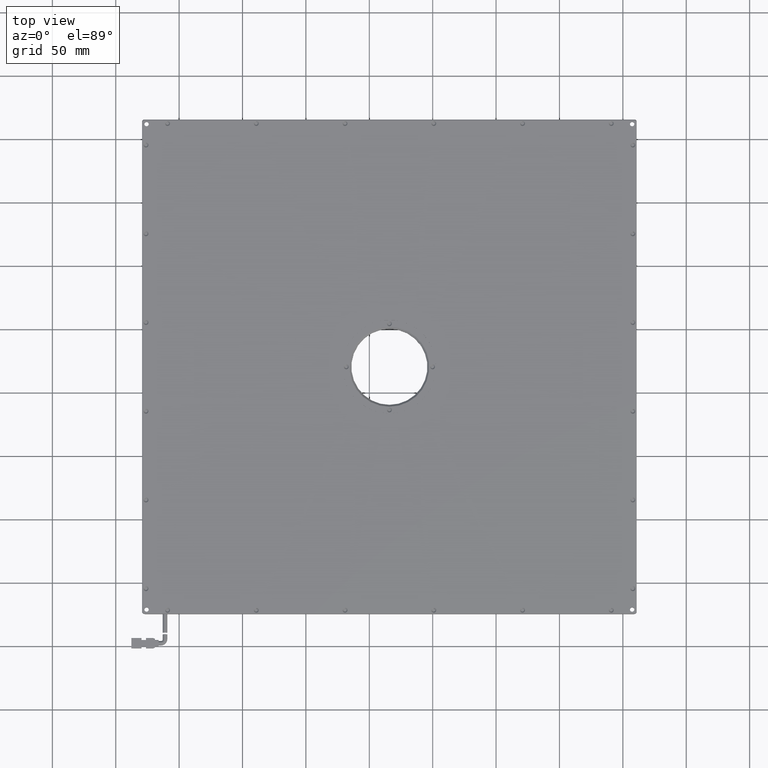
[diagram: clean part render]
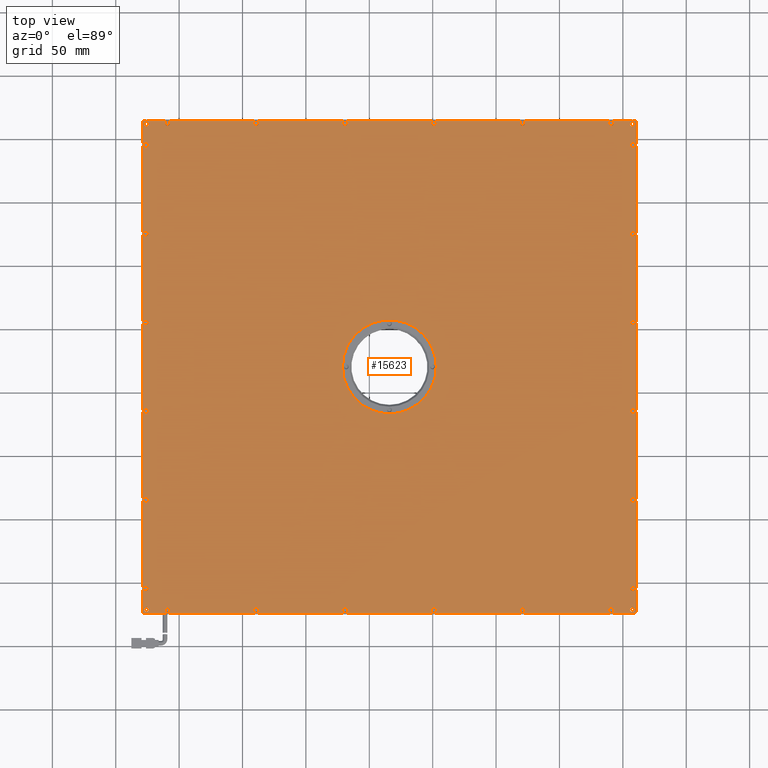
[diagram: same view with one face highlighted and labeled with its STEP entity id]
A machine part, top view. The second image highlights one B-rep face of the part: STEP entity #15623.
In plain terms, the highlighted planar face has unit normal (0, -0, 1).
Its self-contained STEP definition (entity closure, byte-faithful):
#19 = DIRECTION ( 'NONE',  ( 1.000000000000000000, 0.0000000000000000000, 0.0000000000000000000 ) ) ;
#29 = AXIS2_PLACEMENT_3D ( 'NONE', #14003, #8614, #10539 ) ;
#53 = EDGE_CURVE ( 'NONE', #6862, #17499, #2041, .T. ) ;
#58 = ORIENTED_EDGE ( 'NONE', *, *, #20831, .T. ) ;
#73 = FACE_BOUND ( 'NONE', #9684, .T. ) ;
#82 = EDGE_LOOP ( 'NONE', ( #20084, #21516 ) ) ;
#92 = CIRCLE ( 'NONE', #21114, 1.749999999999973800 ) ;
#101 = CARTESIAN_POINT ( 'NONE',  ( -67.14840179855441700, 212.4229729729719100, 8.249999999962254200 ) ) ;
#123 = EDGE_CURVE ( 'NONE', #21405, #4573, #3881, .T. ) ;
#125 = EDGE_CURVE ( 'NONE', #18833, #15910, #3348, .T. ) ;
#160 = DIRECTION ( 'NONE',  ( 1.000000000000000000, 0.0000000000000000000, 0.0000000000000000000 ) ) ;
#212 = CARTESIAN_POINT ( 'NONE',  ( -226.1484017985400200, -84.57702702702613400, 8.250000000019097600 ) ) ;
#261 = ORIENTED_EDGE ( 'NONE', *, *, #545, .T. ) ;
#283 = CARTESIAN_POINT ( 'NONE',  ( -229.1484017985390300, 214.9229729729718800, 8.249999999999998200 ) ) ;
#288 = EDGE_CURVE ( 'NONE', #12658, #2480, #4926, .T. ) ;
#368 = DIRECTION ( 'NONE',  ( 1.000000000000000000, 0.0000000000000000000, 0.0000000000000000000 ) ) ;
#463 = VERTEX_POINT ( 'NONE', #3064 ) ;
#476 = VERTEX_POINT ( 'NONE', #14835 ) ;
#477 = AXIS2_PLACEMENT_3D ( 'NONE', #6607, #8167, #18540 ) ;
#488 = EDGE_LOOP ( 'NONE', ( #7412, #10250 ) ) ;
#490 = VERTEX_POINT ( 'NONE', #16619 ) ;
#502 = VERTEX_POINT ( 'NONE', #8056 ) ;
#506 = CIRCLE ( 'NONE', #20376, 2.000000000027784900 ) ;
#545 = EDGE_CURVE ( 'NONE', #15107, #8422, #4348, .T. ) ;
#566 = EDGE_CURVE ( 'NONE', #476, #9454, #92, .T. ) ;
#587 = DIRECTION ( 'NONE',  ( 1.000000000000000000, 0.0000000000000000000, 0.0000000000000000000 ) ) ;
#601 = CIRCLE ( 'NONE', #17073, 1.749999999999973800 ) ;
#604 = FACE_BOUND ( 'NONE', #10722, .T. ) ;
#618 = VECTOR ( 'NONE', #16949, 1000.000000000000000 ) ;
#753 = EDGE_CURVE ( 'NONE', #12091, #3181, #10726, .T. ) ;
#777 = EDGE_LOOP ( 'NONE', ( #19841, #14763 ) ) ;
#940 = CARTESIAN_POINT ( 'NONE',  ( 157.8515982014611400, 55.42297297297133700, 8.250000000019097600 ) ) ;
#941 = AXIS2_PLACEMENT_3D ( 'NONE', #2486, #18123, #7896 ) ;
#971 = AXIS2_PLACEMENT_3D ( 'NONE', #2110, #7225, #587 ) ;
#972 = EDGE_CURVE ( 'NONE', #19331, #14021, #10702, .T. ) ;
#1065 = CARTESIAN_POINT ( 'NONE',  ( -34.14840179853894900, 20.42297297297193700, 8.249999999999998200 ) ) ;
#1132 = DIRECTION ( 'NONE',  ( 1.000000000000000000, 0.0000000000000000000, 0.0000000000000000000 ) ) ;
#1156 = DIRECTION ( 'NONE',  ( 1.000000000000000000, 0.0000000000000000000, 0.0000000000000000000 ) ) ;
#1157 = CIRCLE ( 'NONE', #2996, 1.999999999998169900 ) ;
#1166 = EDGE_CURVE ( 'NONE', #16191, #13073, #15524, .T. ) ;
#1203 = DIRECTION ( 'NONE',  ( 0.0000000000000000000, -0.0000000000000000000, 1.000000000000000000 ) ) ;
#1219 = DIRECTION ( 'NONE',  ( 1.000000000000000000, 0.0000000000000000000, 0.0000000000000000000 ) ) ;
#1266 = DIRECTION ( 'NONE',  ( 1.000000000000000000, 0.0000000000000000000, 0.0000000000000000000 ) ) ;
#1276 = CARTESIAN_POINT ( 'NONE',  ( 155.8515982015007900, -14.57702702702867700, 8.250000000019097600 ) ) ;
#1289 = ORIENTED_EDGE ( 'NONE', *, *, #10288, .T. ) ;
#1291 = CARTESIAN_POINT ( 'NONE',  ( -228.6484017985390300, -173.3699202458416000, 8.249999999999998200 ) ) ;
#1315 = VERTEX_POINT ( 'NONE', #1276 ) ;
#1340 = CARTESIAN_POINT ( 'NONE',  ( -207.1484017985407600, 212.4229729729718800, 8.250000000019097600 ) ) ;
#1379 = EDGE_CURVE ( 'NONE', #5773, #1315, #20544, .T. ) ;
#1462 = CARTESIAN_POINT ( 'NONE',  ( 157.8515982014606600, -84.57702702702867700, 8.250000000019097600 ) ) ;
#1468 = VERTEX_POINT ( 'NONE', #1502 ) ;
#1469 = CIRCLE ( 'NONE', #9238, 1.999999999959895000 ) ;
#1502 = CARTESIAN_POINT ( 'NONE',  ( 138.8515982014403400, -171.5770270270280100, 8.250000000019097600 ) ) ;
#1577 = CARTESIAN_POINT ( 'NONE',  ( -226.1484017985407600, -154.5770270270261300, 8.250000000019097600 ) ) ;
#1635 = CARTESIAN_POINT ( 'NONE',  ( -226.1484017985378300, 125.4229729729738900, 8.250000000019097600 ) ) ;
#1669 = AXIS2_PLACEMENT_3D ( 'NONE', #16491, #11407, #13220 ) ;
#1673 = DIRECTION ( 'NONE',  ( 1.000000000000000000, 0.0000000000000000000, 0.0000000000000000000 ) ) ;
#1683 = DIRECTION ( 'NONE',  ( 1.000000000000000000, 0.0000000000000000000, 0.0000000000000000000 ) ) ;
#1709 = VERTEX_POINT ( 'NONE', #16218 ) ;
#1765 = EDGE_CURVE ( 'NONE', #8557, #11190, #4264, .T. ) ;
#1777 = DIRECTION ( 'NONE',  ( 1.000000000000000000, 0.0000000000000000000, 0.0000000000000000000 ) ) ;
#1799 = CIRCLE ( 'NONE', #7167, 37.00000000000000000 ) ;
#1819 = CARTESIAN_POINT ( 'NONE',  ( -226.1484017985371200, 195.4229729729738900, 8.250000000019097600 ) ) ;
#1864 = CARTESIAN_POINT ( 'NONE',  ( 157.8515982014616000, 195.4229729729713400, 8.250000000019097600 ) ) ;
#1865 = CIRCLE ( 'NONE', #21846, 2.000000000027660100 ) ;
#1881 = DIRECTION ( 'NONE',  ( -0.0000000000000000000, 0.0000000000000000000, -1.000000000000000000 ) ) ;
#1913 = AXIS2_PLACEMENT_3D ( 'NONE', #15171, #3026, #2962 ) ;
#1932 = CIRCLE ( 'NONE', #7446, 2.000000000027660100 ) ;
#1938 = AXIS2_PLACEMENT_3D ( 'NONE', #1065, #14617, #6048 ) ;
#2035 = ORIENTED_EDGE ( 'NONE', *, *, #125, .T. ) ;
#2041 = LINE ( 'NONE', #18326, #14542 ) ;
#2110 = CARTESIAN_POINT ( 'NONE',  ( -226.1484017985392800, -14.57702702702612300, 8.250000000019097600 ) ) ;
#2137 = CARTESIAN_POINT ( 'NONE',  ( 159.8515982014210400, 55.42297297297133700, 8.250000000019097600 ) ) ;
#2246 = VERTEX_POINT ( 'NONE', #10348 ) ;
#2388 = CARTESIAN_POINT ( 'NONE',  ( -224.1484017985366700, 55.42297297297388100, 8.250000000019097600 ) ) ;
#2399 = VECTOR ( 'NONE', #13412, 1000.000000000000100 ) ;
#2403 = DIRECTION ( 'NONE',  ( -0.0000000000000000000, 0.0000000000000000000, -1.000000000000000000 ) ) ;
#2429 = CIRCLE ( 'NONE', #9331, 2.000000000000445900 ) ;
#2460 = DIRECTION ( 'NONE',  ( -0.0000000000000000000, 0.0000000000000000000, -1.000000000000000000 ) ) ;
#2465 = EDGE_CURVE ( 'NONE', #15978, #7935, #12492, .T. ) ;
#2480 = VERTEX_POINT ( 'NONE', #16290 ) ;
#2486 = CARTESIAN_POINT ( 'NONE',  ( -209.1484017985390600, 212.4229729729718800, 8.250000000019097600 ) ) ;
#2517 = CIRCLE ( 'NONE', #971, 2.000000000002610800 ) ;
#2551 = VERTEX_POINT ( 'NONE', #16008 ) ;
#2558 = VERTEX_POINT ( 'NONE', #2388 ) ;
#2611 = ORIENTED_EDGE ( 'NONE', *, *, #20011, .T. ) ;
#2619 = EDGE_CURVE ( 'NONE', #11498, #13073, #4463, .T. ) ;
#2638 = CIRCLE ( 'NONE', #6939, 2.000000000020818500 ) ;
#2653 = EDGE_LOOP ( 'NONE', ( #21018, #16765 ) ) ;
#2707 = CARTESIAN_POINT ( 'NONE',  ( -226.1484017985400200, -84.57702702702613400, 8.250000000019097600 ) ) ;
#2723 = DIRECTION ( 'NONE',  ( 1.000000000000000000, 0.0000000000000000000, 0.0000000000000000000 ) ) ;
#2779 = EDGE_CURVE ( 'NONE', #20738, #15132, #5787, .T. ) ;
#2790 = DIRECTION ( 'NONE',  ( -0.0000000000000000000, 0.0000000000000000000, -1.000000000000000000 ) ) ;
#2810 = AXIS2_PLACEMENT_3D ( 'NONE', #6497, #14845, #6433 ) ;
#2873 = EDGE_CURVE ( 'NONE', #490, #16749, #601, .T. ) ;
#2926 = CARTESIAN_POINT ( 'NONE',  ( 157.8515982014609200, -14.57702702702867700, 8.250000000019097600 ) ) ;
#2935 = CARTESIAN_POINT ( 'NONE',  ( 140.8515982014611400, -171.5770270270280100, 8.250000000019097600 ) ) ;
#2962 = DIRECTION ( 'NONE',  ( 1.000000000000000000, 0.0000000000000000000, 0.0000000000000000000 ) ) ;
#2992 = CIRCLE ( 'NONE', #9026, 2.000000000034613200 ) ;
#2995 = DIRECTION ( 'NONE',  ( -0.0000000000000000000, 0.0000000000000000000, -1.000000000000000000 ) ) ;
#2996 = AXIS2_PLACEMENT_3D ( 'NONE', #3607, #3305, #1683 ) ;
#3016 = FACE_BOUND ( 'NONE', #488, .T. ) ;
#3020 = EDGE_LOOP ( 'NONE', ( #16006, #14158 ) ) ;
#3026 = DIRECTION ( 'NONE',  ( -0.0000000000000000000, 0.0000000000000000000, -1.000000000000000000 ) ) ;
#3027 = AXIS2_PLACEMENT_3D ( 'NONE', #2926, #13206, #14832 ) ;
#3036 = ORIENTED_EDGE ( 'NONE', *, *, #753, .T. ) ;
#3064 = CARTESIAN_POINT ( 'NONE',  ( -224.1484017985366700, -14.57702702702612300, 8.250000000019097600 ) ) ;
#3128 = AXIS2_PLACEMENT_3D ( 'NONE', #1864, #7198, #15768 ) ;
#3138 = VERTEX_POINT ( 'NONE', #20283 ) ;
#3181 = VERTEX_POINT ( 'NONE', #15066 ) ;
#3305 = DIRECTION ( 'NONE',  ( -0.0000000000000000000, 0.0000000000000000000, -1.000000000000000000 ) ) ;
#3307 = CIRCLE ( 'NONE', #3128, 1.999999999959423100 ) ;
#3319 = CIRCLE ( 'NONE', #1669, 1.999999999998169900 ) ;
#3348 = CIRCLE ( 'NONE', #12428, 2.000000000001167500 ) ;
#3401 = VERTEX_POINT ( 'NONE', #15655 ) ;
#3460 = VERTEX_POINT ( 'NONE', #10939 ) ;
#3476 = DIRECTION ( 'NONE',  ( 1.000000000000000000, 0.0000000000000000000, 0.0000000000000000000 ) ) ;
#3492 = CARTESIAN_POINT ( 'NONE',  ( -1.148401798573610400, 212.4229729729719100, 8.250000000019097600 ) ) ;
#3494 = CARTESIAN_POINT ( 'NONE',  ( -228.1484017985433500, -84.57702702702613400, 8.250000000019097600 ) ) ;
#3510 = DIRECTION ( 'NONE',  ( -0.0000000000000000000, 0.0000000000000000000, -1.000000000000000000 ) ) ;
#3547 = DIRECTION ( 'NONE',  ( 1.000000000000000000, 0.0000000000000000000, 0.0000000000000000000 ) ) ;
#3584 = AXIS2_PLACEMENT_3D ( 'NONE', #7659, #21354, #17886 ) ;
#3607 = CARTESIAN_POINT ( 'NONE',  ( -209.1484017985389400, -171.5770270270280700, 8.250000000019097600 ) ) ;
#3624 = CARTESIAN_POINT ( 'NONE',  ( -139.1484017985390300, 212.4229729729718800, 8.250000000019097600 ) ) ;
#3684 = CARTESIAN_POINT ( 'NONE',  ( 72.85159820148879800, -171.5770270270280100, 8.250000000019097600 ) ) ;
#3695 = VERTEX_POINT ( 'NONE', #5605 ) ;
#3795 = FACE_BOUND ( 'NONE', #16782, .T. ) ;
#3881 = CIRCLE ( 'NONE', #17857, 1.999999999959895000 ) ;
#3985 = CARTESIAN_POINT ( 'NONE',  ( 155.8515982015012500, 55.42297297297133700, 8.250000000019097600 ) ) ;
#4013 = CARTESIAN_POINT ( 'NONE',  ( -223.8984017985369800, 211.9229729729738900, 8.250000000000000000 ) ) ;
#4041 = AXIS2_PLACEMENT_3D ( 'NONE', #14939, #4859, #4724 ) ;
#4079 = FACE_BOUND ( 'NONE', #7168, .T. ) ;
#4111 = VERTEX_POINT ( 'NONE', #17656 ) ;
#4192 = CARTESIAN_POINT ( 'NONE',  ( -209.1484017985390600, 212.4229729729718800, 8.250000000019097600 ) ) ;
#4235 = EDGE_CURVE ( 'NONE', #2480, #12658, #17561, .T. ) ;
#4238 = VECTOR ( 'NONE', #17982, 1000.000000000000100 ) ;
#4264 = CIRCLE ( 'NONE', #10462, 1.749999999999973800 ) ;
#4273 = EDGE_CURVE ( 'NONE', #8422, #15107, #13291, .T. ) ;
#4291 = DIRECTION ( 'NONE',  ( -0.0000000000000000000, 0.0000000000000000000, -1.000000000000000000 ) ) ;
#4312 = DIRECTION ( 'NONE',  ( 1.000000000000000000, 0.0000000000000000000, 0.0000000000000000000 ) ) ;
#4334 = FACE_BOUND ( 'NONE', #2653, .T. ) ;
#4348 = CIRCLE ( 'NONE', #19020, 1.999999999960588900 ) ;
#4415 = EDGE_LOOP ( 'NONE', ( #14808, #58 ) ) ;
#4448 = LINE ( 'NONE', #283, #6848 ) ;
#4463 = LINE ( 'NONE', #9648, #7932 ) ;
#4490 = CARTESIAN_POINT ( 'NONE',  ( 159.8515982014210400, -14.57702702702867700, 8.250000000019097600 ) ) ;
#4565 = ORIENTED_EDGE ( 'NONE', *, *, #2619, .F. ) ;
#4573 = VERTEX_POINT ( 'NONE', #3985 ) ;
#4623 = FACE_BOUND ( 'NONE', #11718, .T. ) ;
#4654 = VERTEX_POINT ( 'NONE', #9324 ) ;
#4656 = VERTEX_POINT ( 'NONE', #19569 ) ;
#4724 = DIRECTION ( 'NONE',  ( 1.000000000000000000, 0.0000000000000000000, 0.0000000000000000000 ) ) ;
#4733 = CARTESIAN_POINT ( 'NONE',  ( 155.8515982014998500, -154.5770270270286900, 8.250000000019097600 ) ) ;
#4761 = EDGE_CURVE ( 'NONE', #3460, #17729, #15122, .T. ) ;
#4783 = ORIENTED_EDGE ( 'NONE', *, *, #15448, .T. ) ;
#4789 = EDGE_LOOP ( 'NONE', ( #19335, #19393 ) ) ;
#4812 = CARTESIAN_POINT ( 'NONE',  ( -228.1484017985375800, 195.4229729729738900, 8.250000000019097600 ) ) ;
#4859 = DIRECTION ( 'NONE',  ( -0.0000000000000000000, 0.0000000000000000000, -1.000000000000000000 ) ) ;
#4861 = FACE_BOUND ( 'NONE', #12918, .T. ) ;
#4897 = LINE ( 'NONE', #18759, #618 ) ;
#4926 = CIRCLE ( 'NONE', #13298, 1.999999999991425300 ) ;
#4957 = CARTESIAN_POINT ( 'NONE',  ( 157.3515982014603800, -171.0770270270286900, 8.250000000000000000 ) ) ;
#4977 = DIRECTION ( 'NONE',  ( -0.0000000000000000000, 0.0000000000000000000, -1.000000000000000000 ) ) ;
#5014 = DIRECTION ( 'NONE',  ( -0.0000000000000000000, 0.0000000000000000000, -1.000000000000000000 ) ) ;
#5030 = DIRECTION ( 'NONE',  ( -0.0000000000000000000, 0.0000000000000000000, -1.000000000000000000 ) ) ;
#5087 = DIRECTION ( 'NONE',  ( 1.000000000000000000, 0.0000000000000000000, 0.0000000000000000000 ) ) ;
#5105 = CARTESIAN_POINT ( 'NONE',  ( 160.3515982014610000, -173.3699202458415400, 8.249999999999985800 ) ) ;
#5127 = FACE_BOUND ( 'NONE', #10204, .T. ) ;
#5148 = CIRCLE ( 'NONE', #12628, 2.000000000002610800 ) ;
#5228 = AXIS2_PLACEMENT_3D ( 'NONE', #11310, #6474, #1266 ) ;
#5319 = ORIENTED_EDGE ( 'NONE', *, *, #19276, .T. ) ;
#5491 = DIRECTION ( 'NONE',  ( 1.000000000000000000, 0.0000000000000000000, 0.0000000000000000000 ) ) ;
#5498 = VERTEX_POINT ( 'NONE', #101 ) ;
#5525 = CARTESIAN_POINT ( 'NONE',  ( -226.1484017985392800, -14.57702702702612300, 8.250000000019097600 ) ) ;
#5605 = CARTESIAN_POINT ( 'NONE',  ( -71.14840179852360800, 212.4229729729719100, 8.249999999962254200 ) ) ;
#5661 = CARTESIAN_POINT ( 'NONE',  ( 159.6444914202743600, -174.0770270270280700, 8.249999999999998200 ) ) ;
#5665 = DIRECTION ( 'NONE',  ( -0.0000000000000000000, 0.0000000000000000000, -1.000000000000000000 ) ) ;
#5765 = EDGE_CURVE ( 'NONE', #12934, #17981, #16892, .T. ) ;
#5773 = VERTEX_POINT ( 'NONE', #4490 ) ;
#5787 = CIRCLE ( 'NONE', #1938, 37.00000000000000000 ) ;
#5790 = CIRCLE ( 'NONE', #941, 1.999999999998280900 ) ;
#5802 = DIRECTION ( 'NONE',  ( -0.0000000000000000000, 0.0000000000000000000, -1.000000000000000000 ) ) ;
#5876 = EDGE_CURVE ( 'NONE', #12020, #1468, #9064, .T. ) ;
#5906 = CIRCLE ( 'NONE', #15828, 2.000000000003332400 ) ;
#5909 = DIRECTION ( 'NONE',  ( 1.000000000000000000, 0.0000000000000000000, 0.0000000000000000000 ) ) ;
#5942 = CARTESIAN_POINT ( 'NONE',  ( -69.14840179853889900, -171.5770270270280400, 8.249999999962254200 ) ) ;
#5997 = EDGE_CURVE ( 'NONE', #4656, #10281, #506, .T. ) ;
#6048 = DIRECTION ( 'NONE',  ( 1.000000000000000000, 0.0000000000000000000, 0.0000000000000000000 ) ) ;
#6086 = VERTEX_POINT ( 'NONE', #3492 ) ;
#6260 = DIRECTION ( 'NONE',  ( 1.000000000000000000, 0.0000000000000000000, 0.0000000000000000000 ) ) ;
#6347 = CARTESIAN_POINT ( 'NONE',  ( 157.3515982014603800, -171.0770270270286900, 8.250000000000000000 ) ) ;
#6432 = DIRECTION ( 'NONE',  ( 1.000000000000000000, 0.0000000000000000000, 0.0000000000000000000 ) ) ;
#6433 = DIRECTION ( 'NONE',  ( 1.000000000000000000, 0.0000000000000000000, 0.0000000000000000000 ) ) ;
#6474 = DIRECTION ( 'NONE',  ( -0.0000000000000000000, 0.0000000000000000000, -1.000000000000000000 ) ) ;
#6497 = CARTESIAN_POINT ( 'NONE',  ( -69.14840179853901200, 212.4229729729719100, 8.249999999962254200 ) ) ;
#6501 = ORIENTED_EDGE ( 'NONE', *, *, #20954, .F. ) ;
#6544 = AXIS2_PLACEMENT_3D ( 'NONE', #21184, #4291, #10990 ) ;
#6574 = VERTEX_POINT ( 'NONE', #3494 ) ;
#6607 = CARTESIAN_POINT ( 'NONE',  ( -139.1484017985389100, -171.5770270270280400, 8.250000000019097600 ) ) ;
#6616 = CARTESIAN_POINT ( 'NONE',  ( 160.3515982014610000, 214.2158661917854400, 8.249999999999998200 ) ) ;
#6635 = DIRECTION ( 'NONE',  ( 0.0000000000000000000, 0.0000000000000000000, -1.000000000000000000 ) ) ;
#6717 = CARTESIAN_POINT ( 'NONE',  ( 70.85159820146100200, 212.4229729729719100, 8.250000000019097600 ) ) ;
#6772 = CARTESIAN_POINT ( 'NONE',  ( 2.851598201461053300, 20.42297297297193700, 8.249999999999998200 ) ) ;
#6783 = ORIENTED_EDGE ( 'NONE', *, *, #20271, .T. ) ;
#6841 = ORIENTED_EDGE ( 'NONE', *, *, #12179, .T. ) ;
#6848 = VECTOR ( 'NONE', #12207, 1000.000000000000000 ) ;
#6862 = VERTEX_POINT ( 'NONE', #20023 ) ;
#6939 = AXIS2_PLACEMENT_3D ( 'NONE', #9292, #2403, #17738 ) ;
#7055 = DIRECTION ( 'NONE',  ( 1.000000000000000000, 0.0000000000000000000, 0.0000000000000000000 ) ) ;
#7140 = CIRCLE ( 'NONE', #10062, 2.000000000001889200 ) ;
#7167 = AXIS2_PLACEMENT_3D ( 'NONE', #7273, #10627, #14014 ) ;
#7168 = EDGE_LOOP ( 'NONE', ( #11828, #21975 ) ) ;
#7198 = DIRECTION ( 'NONE',  ( -0.0000000000000000000, 0.0000000000000000000, -1.000000000000000000 ) ) ;
#7199 = AXIS2_PLACEMENT_3D ( 'NONE', #11637, #8298, #1673 ) ;
#7225 = DIRECTION ( 'NONE',  ( -0.0000000000000000000, 0.0000000000000000000, -1.000000000000000000 ) ) ;
#7273 = CARTESIAN_POINT ( 'NONE',  ( -34.14840179853894900, 20.42297297297193700, 8.249999999999998200 ) ) ;
#7277 = CIRCLE ( 'NONE', #8542, 1.749999999999973800 ) ;
#7311 = DIRECTION ( 'NONE',  ( 1.000000000000000000, 0.0000000000000000000, 0.0000000000000000000 ) ) ;
#7412 = ORIENTED_EDGE ( 'NONE', *, *, #1379, .T. ) ;
#7446 = AXIS2_PLACEMENT_3D ( 'NONE', #13311, #14634, #21466 ) ;
#7497 = EDGE_CURVE ( 'NONE', #5498, #3695, #14499, .T. ) ;
#7543 = FACE_BOUND ( 'NONE', #11461, .T. ) ;
#7563 = CIRCLE ( 'NONE', #8187, 2.000000000034502200 ) ;
#7654 = VERTEX_POINT ( 'NONE', #4812 ) ;
#7659 = CARTESIAN_POINT ( 'NONE',  ( 157.8515982014616000, 195.4229729729713400, 8.250000000019097600 ) ) ;
#7745 = ORIENTED_EDGE ( 'NONE', *, *, #16270, .T. ) ;
#7864 = CIRCLE ( 'NONE', #5228, 1.999999999991314300 ) ;
#7896 = DIRECTION ( 'NONE',  ( 1.000000000000000000, 0.0000000000000000000, 0.0000000000000000000 ) ) ;
#7904 = ORIENTED_EDGE ( 'NONE', *, *, #9546, .T. ) ;
#7932 = VECTOR ( 'NONE', #11226, 1000.000000000000000 ) ;
#7935 = VERTEX_POINT ( 'NONE', #10971 ) ;
#7989 = DIRECTION ( 'NONE',  ( 1.000000000000000000, 0.0000000000000000000, 0.0000000000000000000 ) ) ;
#8023 = DIRECTION ( 'NONE',  ( -0.0000000000000000000, 0.0000000000000000000, -1.000000000000000000 ) ) ;
#8027 = CARTESIAN_POINT ( 'NONE',  ( 159.6444914202744800, -174.0770270270280700, 8.249999999999985800 ) ) ;
#8056 = CARTESIAN_POINT ( 'NONE',  ( -227.3984017985369200, 211.9229729729738900, 8.250000000000000000 ) ) ;
#8136 = DIRECTION ( 'NONE',  ( -0.0000000000000000000, 0.0000000000000000000, -1.000000000000000000 ) ) ;
#8147 = EDGE_CURVE ( 'NONE', #1315, #5773, #12604, .T. ) ;
#8153 = VERTEX_POINT ( 'NONE', #17006 ) ;
#8167 = DIRECTION ( 'NONE',  ( -0.0000000000000000000, 0.0000000000000000000, -1.000000000000000000 ) ) ;
#8187 = AXIS2_PLACEMENT_3D ( 'NONE', #10725, #19478, #5909 ) ;
#8201 = ORIENTED_EDGE ( 'NONE', *, *, #5997, .T. ) ;
#8239 = CIRCLE ( 'NONE', #8862, 2.000000000000445900 ) ;
#8249 = VERTEX_POINT ( 'NONE', #15152 ) ;
#8253 = DIRECTION ( 'NONE',  ( 1.000000000000000000, 0.0000000000000000000, 0.0000000000000000000 ) ) ;
#8298 = DIRECTION ( 'NONE',  ( -0.0000000000000000000, 0.0000000000000000000, -1.000000000000000000 ) ) ;
#8343 = FACE_BOUND ( 'NONE', #15342, .T. ) ;
#8422 = VERTEX_POINT ( 'NONE', #14319 ) ;
#8426 = DIRECTION ( 'NONE',  ( -0.0000000000000000000, 0.0000000000000000000, -1.000000000000000000 ) ) ;
#8483 = ORIENTED_EDGE ( 'NONE', *, *, #15812, .T. ) ;
#8542 = AXIS2_PLACEMENT_3D ( 'NONE', #11956, #10085, #5087 ) ;
#8557 = VERTEX_POINT ( 'NONE', #11172 ) ;
#8601 = EDGE_CURVE ( 'NONE', #15953, #6574, #5906, .T. ) ;
#8608 = FACE_BOUND ( 'NONE', #8866, .T. ) ;
#8613 = DIRECTION ( 'NONE',  ( -0.0000000000000000000, 0.0000000000000000000, -1.000000000000000000 ) ) ;
#8614 = DIRECTION ( 'NONE',  ( -0.0000000000000000000, 0.0000000000000000000, -1.000000000000000000 ) ) ;
#8617 = ORIENTED_EDGE ( 'NONE', *, *, #7497, .T. ) ;
#8629 = EDGE_LOOP ( 'NONE', ( #4565, #18075, #6501, #1289, #17368, #19659, #15710, #17779 ) ) ;
#8640 = ORIENTED_EDGE ( 'NONE', *, *, #15402, .T. ) ;
#8646 = CARTESIAN_POINT ( 'NONE',  ( 142.8515982014819800, -171.5770270270280100, 8.250000000019097600 ) ) ;
#8679 = DIRECTION ( 'NONE',  ( -0.0000000000000000000, 0.0000000000000000000, -1.000000000000000000 ) ) ;
#8744 = CARTESIAN_POINT ( 'NONE',  ( 160.3515982014610000, 214.2158661917854400, 8.249999999999992900 ) ) ;
#8751 = VERTEX_POINT ( 'NONE', #16752 ) ;
#8761 = EDGE_LOOP ( 'NONE', ( #18796, #8640 ) ) ;
#8767 = CIRCLE ( 'NONE', #29, 2.000000000020929500 ) ;
#8772 = CIRCLE ( 'NONE', #21012, 1.999999999959645200 ) ;
#8813 = CARTESIAN_POINT ( 'NONE',  ( -224.1484017985366700, -154.5770270270261300, 8.250000000019097600 ) ) ;
#8855 = FACE_BOUND ( 'NONE', #20509, .T. ) ;
#8862 = AXIS2_PLACEMENT_3D ( 'NONE', #13929, #8679, #17356 ) ;
#8866 = EDGE_LOOP ( 'NONE', ( #2611, #9240 ) ) ;
#8882 = EDGE_LOOP ( 'NONE', ( #12618, #3036 ) ) ;
#8935 = VERTEX_POINT ( 'NONE', #4013 ) ;
#9026 = AXIS2_PLACEMENT_3D ( 'NONE', #15271, #1881, #18793 ) ;
#9064 = CIRCLE ( 'NONE', #15370, 2.000000000020818500 ) ;
#9065 = CIRCLE ( 'NONE', #15214, 1.999999999984486400 ) ;
#9084 = DIRECTION ( 'NONE',  ( 0.7071067811865752200, 0.7071067811865197100, 0.0000000000000000000 ) ) ;
#9125 = CARTESIAN_POINT ( 'NONE',  ( 155.8515982015017300, 125.4229729729713400, 8.250000000019097600 ) ) ;
#9129 = FACE_BOUND ( 'NONE', #9838, .T. ) ;
#9159 = CIRCLE ( 'NONE', #2810, 1.999999999984597400 ) ;
#9238 = AXIS2_PLACEMENT_3D ( 'NONE', #940, #19734, #1156 ) ;
#9240 = ORIENTED_EDGE ( 'NONE', *, *, #20957, .T. ) ;
#9292 = CARTESIAN_POINT ( 'NONE',  ( 140.8515982014611400, -171.5770270270280100, 8.250000000019097600 ) ) ;
#9324 = CARTESIAN_POINT ( 'NONE',  ( -228.1484017985419000, -14.57702702702612300, 8.250000000019097600 ) ) ;
#9331 = AXIS2_PLACEMENT_3D ( 'NONE', #1819, #2995, #160 ) ;
#9332 = VERTEX_POINT ( 'NONE', #3684 ) ;
#9454 = VERTEX_POINT ( 'NONE', #17928 ) ;
#9492 = AXIS2_PLACEMENT_3D ( 'NONE', #14204, #12612, #17690 ) ;
#9511 = VERTEX_POINT ( 'NONE', #11207 ) ;
#9542 = CIRCLE ( 'NONE', #13229, 1.749999999999973800 ) ;
#9546 = EDGE_CURVE ( 'NONE', #9332, #9511, #1932, .T. ) ;
#9648 = CARTESIAN_POINT ( 'NONE',  ( 160.3515982014610000, 215.4229729729718800, 8.249999999999998200 ) ) ;
#9656 = CARTESIAN_POINT ( 'NONE',  ( 70.85159820146114400, -171.5770270270280100, 8.250000000019097600 ) ) ;
#9684 = EDGE_LOOP ( 'NONE', ( #8201, #14317 ) ) ;
#9832 = CIRCLE ( 'NONE', #7199, 2.000000000001889200 ) ;
#9838 = EDGE_LOOP ( 'NONE', ( #18089, #10638 ) ) ;
#9903 = EDGE_LOOP ( 'NONE', ( #21976, #261 ) ) ;
#9935 = FACE_BOUND ( 'NONE', #9903, .T. ) ;
#9969 = EDGE_LOOP ( 'NONE', ( #10515, #16198 ) ) ;
#9984 = CARTESIAN_POINT ( 'NONE',  ( 157.8515982014604300, -154.5770270270286900, 8.250000000019097600 ) ) ;
#10026 = EDGE_LOOP ( 'NONE', ( #19944, #12697 ) ) ;
#10062 = AXIS2_PLACEMENT_3D ( 'NONE', #14031, #12226, #13954 ) ;
#10085 = DIRECTION ( 'NONE',  ( 0.0000000000000000000, 0.0000000000000000000, -1.000000000000000000 ) ) ;
#10103 = DIRECTION ( 'NONE',  ( -0.0000000000000000000, 0.0000000000000000000, -1.000000000000000000 ) ) ;
#10204 = EDGE_LOOP ( 'NONE', ( #17013, #14155 ) ) ;
#10209 = DIRECTION ( 'NONE',  ( 1.000000000000000000, 0.0000000000000000000, 0.0000000000000000000 ) ) ;
#10250 = ORIENTED_EDGE ( 'NONE', *, *, #8147, .T. ) ;
#10268 = EDGE_CURVE ( 'NONE', #17729, #3460, #8772, .T. ) ;
#10270 = CARTESIAN_POINT ( 'NONE',  ( 157.3515982014610000, 211.9229729729719300, 8.250000000000000000 ) ) ;
#10272 = DIRECTION ( 'NONE',  ( -0.0000000000000000000, 0.0000000000000000000, -1.000000000000000000 ) ) ;
#10281 = VERTEX_POINT ( 'NONE', #14693 ) ;
#10288 = EDGE_CURVE ( 'NONE', #10347, #17499, #12777, .T. ) ;
#10343 = VERTEX_POINT ( 'NONE', #16685 ) ;
#10347 = VERTEX_POINT ( 'NONE', #16768 ) ;
#10348 = CARTESIAN_POINT ( 'NONE',  ( -141.1484017985302200, -171.5770270270280400, 8.250000000019097600 ) ) ;
#10429 = EDGE_CURVE ( 'NONE', #7654, #8249, #2429, .T. ) ;
#10462 = AXIS2_PLACEMENT_3D ( 'NONE', #19231, #21718, #8253 ) ;
#10469 = FACE_BOUND ( 'NONE', #4415, .T. ) ;
#10515 = ORIENTED_EDGE ( 'NONE', *, *, #18351, .T. ) ;
#10539 = DIRECTION ( 'NONE',  ( 1.000000000000000000, 0.0000000000000000000, 0.0000000000000000000 ) ) ;
#10568 = CARTESIAN_POINT ( 'NONE',  ( 155.8515982015021800, 195.4229729729713400, 8.250000000019097600 ) ) ;
#10604 = DIRECTION ( 'NONE',  ( 1.000000000000000000, 0.0000000000000000000, 0.0000000000000000000 ) ) ;
#10627 = DIRECTION ( 'NONE',  ( 0.0000000000000000000, 0.0000000000000000000, -1.000000000000000000 ) ) ;
#10638 = ORIENTED_EDGE ( 'NONE', *, *, #12147, .T. ) ;
#10702 = CIRCLE ( 'NONE', #13159, 2.000000000004082100 ) ;
#10722 = EDGE_LOOP ( 'NONE', ( #18777, #6841 ) ) ;
#10725 = CARTESIAN_POINT ( 'NONE',  ( 0.8515982014611136500, -171.5770270270280400, 8.250000000019097600 ) ) ;
#10726 = CIRCLE ( 'NONE', #3584, 1.999999999959423100 ) ;
#10729 = CIRCLE ( 'NONE', #14327, 2.000000000001167500 ) ;
#10881 = AXIS2_PLACEMENT_3D ( 'NONE', #10270, #6635, #15210 ) ;
#10939 = CARTESIAN_POINT ( 'NONE',  ( 159.8515982014210400, 125.4229729729713400, 8.250000000019097600 ) ) ;
#10970 = VECTOR ( 'NONE', #9084, 1000.000000000000100 ) ;
#10971 = CARTESIAN_POINT ( 'NONE',  ( -1.148401798573388300, -171.5770270270280400, 8.250000000019097600 ) ) ;
#10990 = DIRECTION ( 'NONE',  ( 1.000000000000000000, 0.0000000000000000000, 0.0000000000000000000 ) ) ;
#11052 = CIRCLE ( 'NONE', #19818, 2.000000000003332400 ) ;
#11172 = CARTESIAN_POINT ( 'NONE',  ( -227.3984017985388800, -171.0770270270280700, 8.250000000000000000 ) ) ;
#11188 = AXIS2_PLACEMENT_3D ( 'NONE', #16471, #1203, #13136 ) ;
#11190 = VERTEX_POINT ( 'NONE', #14954 ) ;
#11207 = CARTESIAN_POINT ( 'NONE',  ( 68.85159820143347500, -171.5770270270280100, 8.250000000019097600 ) ) ;
#11226 = DIRECTION ( 'NONE',  ( 0.0000000000000000000, -1.000000000000000000, -0.0000000000000000000 ) ) ;
#11250 = PLANE ( 'NONE',  #11188 ) ;
#11251 = EDGE_CURVE ( 'NONE', #13369, #10343, #13788, .T. ) ;
#11289 = CARTESIAN_POINT ( 'NONE',  ( 0.8515982014610026200, 212.4229729729719100, 8.250000000019097600 ) ) ;
#11291 = CARTESIAN_POINT ( 'NONE',  ( -139.1484017985390300, 212.4229729729718800, 8.250000000019097600 ) ) ;
#11310 = CARTESIAN_POINT ( 'NONE',  ( -139.1484017985389100, -171.5770270270280400, 8.250000000019097600 ) ) ;
#11330 = CARTESIAN_POINT ( 'NONE',  ( 157.8515982014613700, 125.4229729729713400, 8.250000000019097600 ) ) ;
#11373 = DIRECTION ( 'NONE',  ( 1.000000000000000000, 0.0000000000000000000, 0.0000000000000000000 ) ) ;
#11407 = DIRECTION ( 'NONE',  ( -0.0000000000000000000, 0.0000000000000000000, -1.000000000000000000 ) ) ;
#11461 = EDGE_LOOP ( 'NONE', ( #14479, #19239 ) ) ;
#11472 = CIRCLE ( 'NONE', #477, 1.999999999991314300 ) ;
#11498 = VERTEX_POINT ( 'NONE', #8744 ) ;
#11520 = DIRECTION ( 'NONE',  ( -0.0000000000000000000, 0.0000000000000000000, -1.000000000000000000 ) ) ;
#11528 = FACE_BOUND ( 'NONE', #10026, .T. ) ;
#11582 = EDGE_CURVE ( 'NONE', #502, #8935, #19872, .T. ) ;
#11637 = CARTESIAN_POINT ( 'NONE',  ( -226.1484017985385700, 55.42297297297388100, 8.250000000019097600 ) ) ;
#11647 = AXIS2_PLACEMENT_3D ( 'NONE', #4192, #2790, #2723 ) ;
#11671 = DIRECTION ( 'NONE',  ( -0.0000000000000000000, 0.0000000000000000000, -1.000000000000000000 ) ) ;
#11718 = EDGE_LOOP ( 'NONE', ( #20229, #12657 ) ) ;
#11732 = CARTESIAN_POINT ( 'NONE',  ( -207.1484017985407600, -171.5770270270280700, 8.250000000019097600 ) ) ;
#11752 = AXIS2_PLACEMENT_3D ( 'NONE', #11291, #8023, #14569 ) ;
#11820 = DIRECTION ( 'NONE',  ( 1.000000000000000000, 0.0000000000000000000, 0.0000000000000000000 ) ) ;
#11828 = ORIENTED_EDGE ( 'NONE', *, *, #16862, .T. ) ;
#11843 = EDGE_CURVE ( 'NONE', #1709, #15131, #3319, .T. ) ;
#11866 = EDGE_CURVE ( 'NONE', #3695, #5498, #9159, .T. ) ;
#11890 = CARTESIAN_POINT ( 'NONE',  ( -211.1484017985373200, 212.4229729729718800, 8.250000000019097600 ) ) ;
#11903 = EDGE_CURVE ( 'NONE', #6862, #14360, #12030, .T. ) ;
#11956 = CARTESIAN_POINT ( 'NONE',  ( -225.6484017985369500, 211.9229729729738900, 8.250000000000000000 ) ) ;
#12020 = VERTEX_POINT ( 'NONE', #8646 ) ;
#12030 = LINE ( 'NONE', #1291, #21592 ) ;
#12057 = CARTESIAN_POINT ( 'NONE',  ( -226.1484017985407600, -154.5770270270261300, 8.250000000019097600 ) ) ;
#12079 = FACE_OUTER_BOUND ( 'NONE', #8629, .T. ) ;
#12091 = VERTEX_POINT ( 'NONE', #10568 ) ;
#12139 = CARTESIAN_POINT ( 'NONE',  ( -224.1484017985366700, -84.57702702702613400, 8.250000000019097600 ) ) ;
#12147 = EDGE_CURVE ( 'NONE', #3138, #2558, #7140, .T. ) ;
#12179 = EDGE_CURVE ( 'NONE', #1468, #12020, #2638, .T. ) ;
#12207 = DIRECTION ( 'NONE',  ( 1.000000000000000000, 7.116814260417670700E-017, 7.116814260417670700E-017 ) ) ;
#12226 = DIRECTION ( 'NONE',  ( -0.0000000000000000000, 0.0000000000000000000, -1.000000000000000000 ) ) ;
#12349 = DIRECTION ( 'NONE',  ( -0.0000000000000000000, 0.0000000000000000000, -1.000000000000000000 ) ) ;
#12428 = AXIS2_PLACEMENT_3D ( 'NONE', #1635, #5030, #3476 ) ;
#12470 = AXIS2_PLACEMENT_3D ( 'NONE', #5942, #2460, #21185 ) ;
#12492 = CIRCLE ( 'NONE', #21735, 2.000000000034502200 ) ;
#12502 = VERTEX_POINT ( 'NONE', #21798 ) ;
#12545 = CARTESIAN_POINT ( 'NONE',  ( -226.1484017985378300, 125.4229729729738900, 8.250000000019097600 ) ) ;
#12604 = CIRCLE ( 'NONE', #12698, 1.999999999960117000 ) ;
#12612 = DIRECTION ( 'NONE',  ( 0.0000000000000000000, 0.0000000000000000000, -1.000000000000000000 ) ) ;
#12618 = ORIENTED_EDGE ( 'NONE', *, *, #18725, .T. ) ;
#12628 = AXIS2_PLACEMENT_3D ( 'NONE', #5525, #20740, #10604 ) ;
#12657 = ORIENTED_EDGE ( 'NONE', *, *, #17691, .T. ) ;
#12658 = VERTEX_POINT ( 'NONE', #17836 ) ;
#12697 = ORIENTED_EDGE ( 'NONE', *, *, #10429, .T. ) ;
#12698 = AXIS2_PLACEMENT_3D ( 'NONE', #20365, #13604, #19 ) ;
#12770 = EDGE_LOOP ( 'NONE', ( #17976, #8483 ) ) ;
#12777 = LINE ( 'NONE', #21380, #4238 ) ;
#12844 = EDGE_LOOP ( 'NONE', ( #4783, #2035 ) ) ;
#12877 = FACE_BOUND ( 'NONE', #9969, .T. ) ;
#12918 = EDGE_LOOP ( 'NONE', ( #8617, #20275 ) ) ;
#12934 = VERTEX_POINT ( 'NONE', #1340 ) ;
#13064 = EDGE_CURVE ( 'NONE', #16749, #490, #20375, .T. ) ;
#13073 = VERTEX_POINT ( 'NONE', #5105 ) ;
#13136 = DIRECTION ( 'NONE',  ( 1.000000000000000000, 0.0000000000000000000, -0.0000000000000000000 ) ) ;
#13159 = AXIS2_PLACEMENT_3D ( 'NONE', #12057, #10103, #11820 ) ;
#13206 = DIRECTION ( 'NONE',  ( -0.0000000000000000000, 0.0000000000000000000, -1.000000000000000000 ) ) ;
#13220 = DIRECTION ( 'NONE',  ( 1.000000000000000000, 0.0000000000000000000, 0.0000000000000000000 ) ) ;
#13229 = AXIS2_PLACEMENT_3D ( 'NONE', #18672, #16785, #10209 ) ;
#13291 = CIRCLE ( 'NONE', #1913, 1.999999999960588900 ) ;
#13295 = EDGE_CURVE ( 'NONE', #2551, #6086, #17705, .T. ) ;
#13298 = AXIS2_PLACEMENT_3D ( 'NONE', #3624, #8613, #3547 ) ;
#13311 = CARTESIAN_POINT ( 'NONE',  ( 70.85159820146114400, -171.5770270270280100, 8.250000000019097600 ) ) ;
#13312 = EDGE_CURVE ( 'NONE', #10343, #13369, #17172, .T. ) ;
#13369 = VERTEX_POINT ( 'NONE', #16590 ) ;
#13412 = DIRECTION ( 'NONE',  ( -0.7071067811865752200, 0.7071067811865197100, 0.0000000000000000000 ) ) ;
#13419 = FACE_BOUND ( 'NONE', #17797, .T. ) ;
#13490 = EDGE_CURVE ( 'NONE', #8935, #502, #7277, .T. ) ;
#13506 = DIRECTION ( 'NONE',  ( 0.0000000000000000000, 0.0000000000000000000, -1.000000000000000000 ) ) ;
#13604 = DIRECTION ( 'NONE',  ( -0.0000000000000000000, 0.0000000000000000000, -1.000000000000000000 ) ) ;
#13707 = CARTESIAN_POINT ( 'NONE',  ( 157.8515982014611400, 55.42297297297133700, 8.250000000019097600 ) ) ;
#13788 = CIRCLE ( 'NONE', #15651, 1.999999999960366800 ) ;
#13833 = EDGE_LOOP ( 'NONE', ( #7745, #15164 ) ) ;
#13929 = CARTESIAN_POINT ( 'NONE',  ( -226.1484017985371200, 195.4229729729738900, 8.250000000019097600 ) ) ;
#13954 = DIRECTION ( 'NONE',  ( 1.000000000000000000, 0.0000000000000000000, 0.0000000000000000000 ) ) ;
#13992 = ORIENTED_EDGE ( 'NONE', *, *, #15815, .T. ) ;
#14003 = CARTESIAN_POINT ( 'NONE',  ( 140.8515982014610300, 212.4229729729719300, 8.250000000019097600 ) ) ;
#14014 = DIRECTION ( 'NONE',  ( 1.000000000000000000, 0.0000000000000000000, 0.0000000000000000000 ) ) ;
#14021 = VERTEX_POINT ( 'NONE', #18214 ) ;
#14031 = CARTESIAN_POINT ( 'NONE',  ( -226.1484017985385700, 55.42297297297388100, 8.250000000019097600 ) ) ;
#14095 = CARTESIAN_POINT ( 'NONE',  ( 2.851598201495615800, -171.5770270270280400, 8.250000000019097600 ) ) ;
#14155 = ORIENTED_EDGE ( 'NONE', *, *, #19028, .T. ) ;
#14158 = ORIENTED_EDGE ( 'NONE', *, *, #10268, .T. ) ;
#14204 = CARTESIAN_POINT ( 'NONE',  ( -225.6484017985369500, 211.9229729729738900, 8.250000000000000000 ) ) ;
#14317 = ORIENTED_EDGE ( 'NONE', *, *, #19497, .T. ) ;
#14319 = CARTESIAN_POINT ( 'NONE',  ( 159.8515982014210400, -154.5770270270286900, 8.250000000019097600 ) ) ;
#14327 = AXIS2_PLACEMENT_3D ( 'NONE', #12545, #5665, #7311 ) ;
#14360 = VERTEX_POINT ( 'NONE', #17891 ) ;
#14479 = ORIENTED_EDGE ( 'NONE', *, *, #19884, .T. ) ;
#14499 = CIRCLE ( 'NONE', #20018, 1.999999999984597400 ) ;
#14513 = CARTESIAN_POINT ( 'NONE',  ( -69.14840179853889900, -171.5770270270280400, 8.249999999962254200 ) ) ;
#14542 = VECTOR ( 'NONE', #18405, 1000.000000000000000 ) ;
#14569 = DIRECTION ( 'NONE',  ( 1.000000000000000000, 0.0000000000000000000, 0.0000000000000000000 ) ) ;
#14577 = CARTESIAN_POINT ( 'NONE',  ( 0.8515982014611136500, -171.5770270270280400, 8.250000000019097600 ) ) ;
#14617 = DIRECTION ( 'NONE',  ( 0.0000000000000000000, 0.0000000000000000000, -1.000000000000000000 ) ) ;
#14634 = DIRECTION ( 'NONE',  ( -0.0000000000000000000, 0.0000000000000000000, -1.000000000000000000 ) ) ;
#14693 = CARTESIAN_POINT ( 'NONE',  ( 68.85159820143322000, 212.4229729729719100, 8.250000000019097600 ) ) ;
#14763 = ORIENTED_EDGE ( 'NONE', *, *, #4235, .T. ) ;
#14808 = ORIENTED_EDGE ( 'NONE', *, *, #2779, .T. ) ;
#14832 = DIRECTION ( 'NONE',  ( 1.000000000000000000, 0.0000000000000000000, 0.0000000000000000000 ) ) ;
#14835 = CARTESIAN_POINT ( 'NONE',  ( 159.1015982014609700, 211.9229729729719300, 8.250000000000000000 ) ) ;
#14845 = DIRECTION ( 'NONE',  ( -0.0000000000000000000, 0.0000000000000000000, -1.000000000000000000 ) ) ;
#14921 = DIRECTION ( 'NONE',  ( 0.0000000000000000000, 0.0000000000000000000, -1.000000000000000000 ) ) ;
#14929 = CARTESIAN_POINT ( 'NONE',  ( -69.14840179853901200, 212.4229729729719100, 8.249999999962254200 ) ) ;
#14939 = CARTESIAN_POINT ( 'NONE',  ( 157.8515982014613700, 125.4229729729713400, 8.250000000019097600 ) ) ;
#14954 = CARTESIAN_POINT ( 'NONE',  ( -223.8984017985389100, -171.0770270270280700, 8.250000000000000000 ) ) ;
#15019 = FACE_BOUND ( 'NONE', #777, .T. ) ;
#15066 = CARTESIAN_POINT ( 'NONE',  ( 159.8515982014210400, 195.4229729729713400, 8.250000000019097600 ) ) ;
#15107 = VERTEX_POINT ( 'NONE', #4733 ) ;
#15122 = CIRCLE ( 'NONE', #4041, 1.999999999959645200 ) ;
#15131 = VERTEX_POINT ( 'NONE', #11732 ) ;
#15132 = VERTEX_POINT ( 'NONE', #16947 ) ;
#15152 = CARTESIAN_POINT ( 'NONE',  ( -224.1484017985366700, 195.4229729729738900, 8.250000000019097600 ) ) ;
#15164 = ORIENTED_EDGE ( 'NONE', *, *, #18581, .T. ) ;
#15171 = CARTESIAN_POINT ( 'NONE',  ( 157.8515982014604300, -154.5770270270286900, 8.250000000019097600 ) ) ;
#15210 = DIRECTION ( 'NONE',  ( 1.000000000000000000, 0.0000000000000000000, 0.0000000000000000000 ) ) ;
#15214 = AXIS2_PLACEMENT_3D ( 'NONE', #14513, #5802, #4312 ) ;
#15271 = CARTESIAN_POINT ( 'NONE',  ( 0.8515982014610026200, 212.4229729729719100, 8.250000000019097600 ) ) ;
#15331 = DIRECTION ( 'NONE',  ( 1.000000000000000000, 0.0000000000000000000, 0.0000000000000000000 ) ) ;
#15342 = EDGE_LOOP ( 'NONE', ( #7904, #6783 ) ) ;
#15370 = AXIS2_PLACEMENT_3D ( 'NONE', #2935, #20211, #6432 ) ;
#15371 = ORIENTED_EDGE ( 'NONE', *, *, #13312, .T. ) ;
#15402 = EDGE_CURVE ( 'NONE', #7935, #15978, #7563, .T. ) ;
#15448 = EDGE_CURVE ( 'NONE', #15910, #18833, #10729, .T. ) ;
#15475 = AXIS2_PLACEMENT_3D ( 'NONE', #1577, #4977, #22034 ) ;
#15524 = LINE ( 'NONE', #5661, #10970 ) ;
#15544 = FACE_BOUND ( 'NONE', #8882, .T. ) ;
#15549 = CIRCLE ( 'NONE', #17562, 2.000000000027784900 ) ;
#15623 = ADVANCED_FACE ( 'NONE', ( #12079, #16065, #15019, #4861, #20080, #73, #7543, #15544, #17943, #5127, #3016, #13419, #9935, #604, #8343, #18495, #8608, #17415, #3795, #17153, #4623, #12877, #9129, #17684, #11528, #8855, #19029, #4079, #4334, #10469 ), #11250, .T. ) ;
#15651 = AXIS2_PLACEMENT_3D ( 'NONE', #1462, #5014, #16874 ) ;
#15655 = CARTESIAN_POINT ( 'NONE',  ( 142.8515982014819800, 212.4229729729719300, 8.250000000019097600 ) ) ;
#15710 = ORIENTED_EDGE ( 'NONE', *, *, #19298, .F. ) ;
#15768 = DIRECTION ( 'NONE',  ( 1.000000000000000000, 0.0000000000000000000, 0.0000000000000000000 ) ) ;
#15769 = CIRCLE ( 'NONE', #15475, 2.000000000004082100 ) ;
#15812 = EDGE_CURVE ( 'NONE', #6086, #2551, #2992, .T. ) ;
#15815 = EDGE_CURVE ( 'NONE', #9454, #476, #20338, .T. ) ;
#15828 = AXIS2_PLACEMENT_3D ( 'NONE', #2707, #16463, #6260 ) ;
#15845 = EDGE_CURVE ( 'NONE', #14021, #19331, #15769, .T. ) ;
#15910 = VERTEX_POINT ( 'NONE', #19160 ) ;
#15953 = VERTEX_POINT ( 'NONE', #12139 ) ;
#15978 = VERTEX_POINT ( 'NONE', #14095 ) ;
#16006 = ORIENTED_EDGE ( 'NONE', *, *, #4761, .T. ) ;
#16008 = CARTESIAN_POINT ( 'NONE',  ( 2.851598201495615800, 212.4229729729719100, 8.250000000019097600 ) ) ;
#16065 = FACE_BOUND ( 'NONE', #20778, .T. ) ;
#16068 = DIRECTION ( 'NONE',  ( 1.000000000000000000, 0.0000000000000000000, 0.0000000000000000000 ) ) ;
#16154 = VERTEX_POINT ( 'NONE', #19748 ) ;
#16191 = VERTEX_POINT ( 'NONE', #8027 ) ;
#16198 = ORIENTED_EDGE ( 'NONE', *, *, #21454, .T. ) ;
#16218 = CARTESIAN_POINT ( 'NONE',  ( -211.1484017985371200, -171.5770270270280700, 8.250000000019097600 ) ) ;
#16270 = EDGE_CURVE ( 'NONE', #16154, #2246, #11472, .T. ) ;
#16290 = CARTESIAN_POINT ( 'NONE',  ( -141.1484017985304400, 212.4229729729718800, 8.250000000019097600 ) ) ;
#16463 = DIRECTION ( 'NONE',  ( -0.0000000000000000000, 0.0000000000000000000, -1.000000000000000000 ) ) ;
#16464 = CARTESIAN_POINT ( 'NONE',  ( -228.6484017985390300, 214.2158661917852100, 8.249999999999998200 ) ) ;
#16471 = CARTESIAN_POINT ( 'NONE',  ( -229.1484017985390300, 215.4229729729718800, 8.249999999999998200 ) ) ;
#16491 = CARTESIAN_POINT ( 'NONE',  ( -209.1484017985389400, -171.5770270270280700, 8.250000000019097600 ) ) ;
#16590 = CARTESIAN_POINT ( 'NONE',  ( 155.8515982015003100, -84.57702702702867700, 8.250000000019097600 ) ) ;
#16619 = CARTESIAN_POINT ( 'NONE',  ( 159.1015982014603500, -171.0770270270286900, 8.250000000000000000 ) ) ;
#16659 = AXIS2_PLACEMENT_3D ( 'NONE', #4957, #18853, #15331 ) ;
#16685 = CARTESIAN_POINT ( 'NONE',  ( 159.8515982014210400, -84.57702702702867700, 8.250000000019097600 ) ) ;
#16749 = VERTEX_POINT ( 'NONE', #20004 ) ;
#16752 = CARTESIAN_POINT ( 'NONE',  ( 138.8515982014401100, 212.4229729729719300, 8.250000000019097600 ) ) ;
#16765 = ORIENTED_EDGE ( 'NONE', *, *, #11582, .T. ) ;
#16768 = CARTESIAN_POINT ( 'NONE',  ( -227.9412950173523300, 214.9229729729718800, 8.249999999999991100 ) ) ;
#16782 = EDGE_LOOP ( 'NONE', ( #5319, #20551 ) ) ;
#16785 = DIRECTION ( 'NONE',  ( 0.0000000000000000000, 0.0000000000000000000, -1.000000000000000000 ) ) ;
#16844 = CARTESIAN_POINT ( 'NONE',  ( 157.3515982014610000, 211.9229729729719300, 8.250000000000000000 ) ) ;
#16862 = EDGE_CURVE ( 'NONE', #11190, #8557, #9542, .T. ) ;
#16874 = DIRECTION ( 'NONE',  ( 1.000000000000000000, 0.0000000000000000000, 0.0000000000000000000 ) ) ;
#16892 = CIRCLE ( 'NONE', #11647, 1.999999999998280900 ) ;
#16947 = CARTESIAN_POINT ( 'NONE',  ( -71.14840179853894100, 20.42297297297194100, 8.249999999999998200 ) ) ;
#16949 = DIRECTION ( 'NONE',  ( -1.000000000000000000, -7.116814260417670700E-017, 7.116814260417670700E-017 ) ) ;
#16954 = EDGE_CURVE ( 'NONE', #2558, #3138, #9832, .T. ) ;
#17006 = CARTESIAN_POINT ( 'NONE',  ( 159.6444914202745300, 214.9229729729719100, 8.250000000000003600 ) ) ;
#17013 = ORIENTED_EDGE ( 'NONE', *, *, #123, .T. ) ;
#17073 = AXIS2_PLACEMENT_3D ( 'NONE', #6347, #14921, #7989 ) ;
#17153 = FACE_BOUND ( 'NONE', #82, .T. ) ;
#17172 = CIRCLE ( 'NONE', #6544, 1.999999999960366800 ) ;
#17300 = EDGE_CURVE ( 'NONE', #17981, #12934, #5790, .T. ) ;
#17356 = DIRECTION ( 'NONE',  ( 1.000000000000000000, 0.0000000000000000000, 0.0000000000000000000 ) ) ;
#17368 = ORIENTED_EDGE ( 'NONE', *, *, #53, .F. ) ;
#17415 = FACE_BOUND ( 'NONE', #13833, .T. ) ;
#17499 = VERTEX_POINT ( 'NONE', #16464 ) ;
#17561 = CIRCLE ( 'NONE', #11752, 1.999999999991425300 ) ;
#17562 = AXIS2_PLACEMENT_3D ( 'NONE', #19636, #19340, #17623 ) ;
#17623 = DIRECTION ( 'NONE',  ( 1.000000000000000000, 0.0000000000000000000, 0.0000000000000000000 ) ) ;
#17656 = CARTESIAN_POINT ( 'NONE',  ( -71.14840179852338100, -171.5770270270280400, 8.249999999962254200 ) ) ;
#17684 = FACE_BOUND ( 'NONE', #12844, .T. ) ;
#17690 = DIRECTION ( 'NONE',  ( 1.000000000000000000, 0.0000000000000000000, 0.0000000000000000000 ) ) ;
#17691 = EDGE_CURVE ( 'NONE', #6574, #15953, #11052, .T. ) ;
#17705 = CIRCLE ( 'NONE', #18419, 2.000000000034613200 ) ;
#17729 = VERTEX_POINT ( 'NONE', #9125 ) ;
#17738 = DIRECTION ( 'NONE',  ( 1.000000000000000000, 0.0000000000000000000, 0.0000000000000000000 ) ) ;
#17779 = ORIENTED_EDGE ( 'NONE', *, *, #1166, .T. ) ;
#17797 = EDGE_LOOP ( 'NONE', ( #15371, #21558 ) ) ;
#17836 = CARTESIAN_POINT ( 'NONE',  ( -137.1484017985475800, 212.4229729729718800, 8.250000000019097600 ) ) ;
#17857 = AXIS2_PLACEMENT_3D ( 'NONE', #13707, #11671, #1777 ) ;
#17886 = DIRECTION ( 'NONE',  ( 1.000000000000000000, 0.0000000000000000000, 0.0000000000000000000 ) ) ;
#17891 = CARTESIAN_POINT ( 'NONE',  ( -227.9412950173525000, -174.0770270270281200, 8.250000000000005300 ) ) ;
#17928 = CARTESIAN_POINT ( 'NONE',  ( 155.6015982014610300, 211.9229729729719300, 8.250000000000000000 ) ) ;
#17943 = FACE_BOUND ( 'NONE', #3020, .T. ) ;
#17976 = ORIENTED_EDGE ( 'NONE', *, *, #13295, .T. ) ;
#17981 = VERTEX_POINT ( 'NONE', #11890 ) ;
#17982 = DIRECTION ( 'NONE',  ( -0.7071067811865335800, -0.7071067811865613400, 0.0000000000000000000 ) ) ;
#18023 = DIRECTION ( 'NONE',  ( -0.0000000000000000000, 0.0000000000000000000, -1.000000000000000000 ) ) ;
#18075 = ORIENTED_EDGE ( 'NONE', *, *, #20305, .T. ) ;
#18089 = ORIENTED_EDGE ( 'NONE', *, *, #16954, .T. ) ;
#18123 = DIRECTION ( 'NONE',  ( -0.0000000000000000000, 0.0000000000000000000, -1.000000000000000000 ) ) ;
#18214 = CARTESIAN_POINT ( 'NONE',  ( -228.1484017985448500, -154.5770270270261300, 8.250000000019097600 ) ) ;
#18326 = CARTESIAN_POINT ( 'NONE',  ( -228.6484017985390300, 215.4229729729718800, 8.249999999999998200 ) ) ;
#18351 = EDGE_CURVE ( 'NONE', #463, #4654, #2517, .T. ) ;
#18405 = DIRECTION ( 'NONE',  ( -0.0000000000000000000, 1.000000000000000000, 0.0000000000000000000 ) ) ;
#18419 = AXIS2_PLACEMENT_3D ( 'NONE', #11289, #19880, #19661 ) ;
#18495 = FACE_BOUND ( 'NONE', #8761, .T. ) ;
#18540 = DIRECTION ( 'NONE',  ( 1.000000000000000000, 0.0000000000000000000, 0.0000000000000000000 ) ) ;
#18581 = EDGE_CURVE ( 'NONE', #2246, #16154, #7864, .T. ) ;
#18672 = CARTESIAN_POINT ( 'NONE',  ( -225.6484017985389100, -171.0770270270280700, 8.250000000000000000 ) ) ;
#18725 = EDGE_CURVE ( 'NONE', #3181, #12091, #3307, .T. ) ;
#18759 = CARTESIAN_POINT ( 'NONE',  ( -229.1484017985389700, -174.0770270270280900, 8.250000000000026600 ) ) ;
#18777 = ORIENTED_EDGE ( 'NONE', *, *, #5876, .T. ) ;
#18793 = DIRECTION ( 'NONE',  ( 1.000000000000000000, 0.0000000000000000000, 0.0000000000000000000 ) ) ;
#18796 = ORIENTED_EDGE ( 'NONE', *, *, #2465, .T. ) ;
#18833 = VERTEX_POINT ( 'NONE', #20628 ) ;
#18853 = DIRECTION ( 'NONE',  ( 0.0000000000000000000, 0.0000000000000000000, -1.000000000000000000 ) ) ;
#19020 = AXIS2_PLACEMENT_3D ( 'NONE', #9984, #10272, #22037 ) ;
#19028 = EDGE_CURVE ( 'NONE', #4573, #21405, #1469, .T. ) ;
#19029 = FACE_BOUND ( 'NONE', #4789, .T. ) ;
#19160 = CARTESIAN_POINT ( 'NONE',  ( -224.1484017985366700, 125.4229729729738900, 8.250000000019097600 ) ) ;
#19231 = CARTESIAN_POINT ( 'NONE',  ( -225.6484017985389100, -171.0770270270280700, 8.250000000000000000 ) ) ;
#19239 = ORIENTED_EDGE ( 'NONE', *, *, #20405, .T. ) ;
#19276 = EDGE_CURVE ( 'NONE', #15131, #1709, #1157, .T. ) ;
#19298 = EDGE_CURVE ( 'NONE', #16191, #14360, #4897, .T. ) ;
#19331 = VERTEX_POINT ( 'NONE', #8813 ) ;
#19335 = ORIENTED_EDGE ( 'NONE', *, *, #2873, .T. ) ;
#19340 = DIRECTION ( 'NONE',  ( -0.0000000000000000000, 0.0000000000000000000, -1.000000000000000000 ) ) ;
#19393 = ORIENTED_EDGE ( 'NONE', *, *, #13064, .T. ) ;
#19478 = DIRECTION ( 'NONE',  ( -0.0000000000000000000, 0.0000000000000000000, -1.000000000000000000 ) ) ;
#19497 = EDGE_CURVE ( 'NONE', #10281, #4656, #15549, .T. ) ;
#19569 = CARTESIAN_POINT ( 'NONE',  ( 72.85159820148878400, 212.4229729729719100, 8.250000000019097600 ) ) ;
#19636 = CARTESIAN_POINT ( 'NONE',  ( 70.85159820146100200, 212.4229729729719100, 8.250000000019097600 ) ) ;
#19659 = ORIENTED_EDGE ( 'NONE', *, *, #11903, .T. ) ;
#19661 = DIRECTION ( 'NONE',  ( 1.000000000000000000, 0.0000000000000000000, 0.0000000000000000000 ) ) ;
#19734 = DIRECTION ( 'NONE',  ( -0.0000000000000000000, 0.0000000000000000000, -1.000000000000000000 ) ) ;
#19748 = CARTESIAN_POINT ( 'NONE',  ( -137.1484017985475800, -171.5770270270280400, 8.250000000019097600 ) ) ;
#19818 = AXIS2_PLACEMENT_3D ( 'NONE', #212, #12349, #7055 ) ;
#19841 = ORIENTED_EDGE ( 'NONE', *, *, #288, .T. ) ;
#19872 = CIRCLE ( 'NONE', #9492, 1.749999999999973800 ) ;
#19880 = DIRECTION ( 'NONE',  ( -0.0000000000000000000, 0.0000000000000000000, -1.000000000000000000 ) ) ;
#19884 = EDGE_CURVE ( 'NONE', #3401, #8751, #21866, .T. ) ;
#19944 = ORIENTED_EDGE ( 'NONE', *, *, #20446, .T. ) ;
#20004 = CARTESIAN_POINT ( 'NONE',  ( 155.6015982014604000, -171.0770270270286900, 8.250000000000000000 ) ) ;
#20005 = ORIENTED_EDGE ( 'NONE', *, *, #5765, .T. ) ;
#20011 = EDGE_CURVE ( 'NONE', #12502, #4111, #9065, .T. ) ;
#20018 = AXIS2_PLACEMENT_3D ( 'NONE', #14929, #8136, #1219 ) ;
#20023 = CARTESIAN_POINT ( 'NONE',  ( -228.6484017985389700, -173.3699202458417100, 8.249999999999996400 ) ) ;
#20080 = FACE_BOUND ( 'NONE', #12770, .T. ) ;
#20084 = ORIENTED_EDGE ( 'NONE', *, *, #972, .T. ) ;
#20191 = ORIENTED_EDGE ( 'NONE', *, *, #566, .T. ) ;
#20211 = DIRECTION ( 'NONE',  ( -0.0000000000000000000, 0.0000000000000000000, -1.000000000000000000 ) ) ;
#20229 = ORIENTED_EDGE ( 'NONE', *, *, #8601, .T. ) ;
#20271 = EDGE_CURVE ( 'NONE', #9511, #9332, #1865, .T. ) ;
#20275 = ORIENTED_EDGE ( 'NONE', *, *, #11866, .T. ) ;
#20283 = CARTESIAN_POINT ( 'NONE',  ( -228.1484017985404500, 55.42297297297388100, 8.250000000019097600 ) ) ;
#20305 = EDGE_CURVE ( 'NONE', #11498, #8153, #21030, .T. ) ;
#20338 = CIRCLE ( 'NONE', #10881, 1.749999999999973800 ) ;
#20349 = DIRECTION ( 'NONE',  ( 1.000000000000000000, 0.0000000000000000000, 0.0000000000000000000 ) ) ;
#20365 = CARTESIAN_POINT ( 'NONE',  ( 157.8515982014609200, -14.57702702702867700, 8.250000000019097600 ) ) ;
#20375 = CIRCLE ( 'NONE', #16659, 1.749999999999973800 ) ;
#20376 = AXIS2_PLACEMENT_3D ( 'NONE', #6717, #8426, #368 ) ;
#20405 = EDGE_CURVE ( 'NONE', #8751, #3401, #8767, .T. ) ;
#20446 = EDGE_CURVE ( 'NONE', #8249, #7654, #8239, .T. ) ;
#20505 = CARTESIAN_POINT ( 'NONE',  ( 140.8515982014610300, 212.4229729729719300, 8.250000000019097600 ) ) ;
#20509 = EDGE_LOOP ( 'NONE', ( #20191, #13992 ) ) ;
#20538 = ORIENTED_EDGE ( 'NONE', *, *, #17300, .T. ) ;
#20544 = CIRCLE ( 'NONE', #3027, 1.999999999960117000 ) ;
#20551 = ORIENTED_EDGE ( 'NONE', *, *, #11843, .T. ) ;
#20628 = CARTESIAN_POINT ( 'NONE',  ( -228.1484017985390300, 125.4229729729738900, 8.250000000019097600 ) ) ;
#20738 = VERTEX_POINT ( 'NONE', #6772 ) ;
#20740 = DIRECTION ( 'NONE',  ( -0.0000000000000000000, 0.0000000000000000000, -1.000000000000000000 ) ) ;
#20778 = EDGE_LOOP ( 'NONE', ( #20005, #20538 ) ) ;
#20831 = EDGE_CURVE ( 'NONE', #15132, #20738, #1799, .T. ) ;
#20954 = EDGE_CURVE ( 'NONE', #10347, #8153, #4448, .T. ) ;
#20957 = EDGE_CURVE ( 'NONE', #4111, #12502, #22014, .T. ) ;
#21012 = AXIS2_PLACEMENT_3D ( 'NONE', #11330, #21605, #1132 ) ;
#21018 = ORIENTED_EDGE ( 'NONE', *, *, #13490, .T. ) ;
#21030 = LINE ( 'NONE', #6616, #2399 ) ;
#21114 = AXIS2_PLACEMENT_3D ( 'NONE', #16844, #13506, #20349 ) ;
#21175 = AXIS2_PLACEMENT_3D ( 'NONE', #20505, #3510, #5491 ) ;
#21184 = CARTESIAN_POINT ( 'NONE',  ( 157.8515982014606600, -84.57702702702867700, 8.250000000019097600 ) ) ;
#21185 = DIRECTION ( 'NONE',  ( 1.000000000000000000, 0.0000000000000000000, 0.0000000000000000000 ) ) ;
#21354 = DIRECTION ( 'NONE',  ( -0.0000000000000000000, 0.0000000000000000000, -1.000000000000000000 ) ) ;
#21380 = CARTESIAN_POINT ( 'NONE',  ( -227.9412950173523600, 214.9229729729718800, 8.249999999999998200 ) ) ;
#21405 = VERTEX_POINT ( 'NONE', #2137 ) ;
#21454 = EDGE_CURVE ( 'NONE', #4654, #463, #5148, .T. ) ;
#21466 = DIRECTION ( 'NONE',  ( 1.000000000000000000, 0.0000000000000000000, 0.0000000000000000000 ) ) ;
#21516 = ORIENTED_EDGE ( 'NONE', *, *, #15845, .T. ) ;
#21558 = ORIENTED_EDGE ( 'NONE', *, *, #11251, .T. ) ;
#21592 = VECTOR ( 'NONE', #21748, 1000.000000000000100 ) ;
#21605 = DIRECTION ( 'NONE',  ( -0.0000000000000000000, 0.0000000000000000000, -1.000000000000000000 ) ) ;
#21718 = DIRECTION ( 'NONE',  ( 0.0000000000000000000, 0.0000000000000000000, -1.000000000000000000 ) ) ;
#21735 = AXIS2_PLACEMENT_3D ( 'NONE', #14577, #18023, #16068 ) ;
#21748 = DIRECTION ( 'NONE',  ( 0.7071067811865474600, -0.7071067811865474600, 0.0000000000000000000 ) ) ;
#21798 = CARTESIAN_POINT ( 'NONE',  ( -67.14840179855441700, -171.5770270270280400, 8.249999999962254200 ) ) ;
#21846 = AXIS2_PLACEMENT_3D ( 'NONE', #9656, #11520, #11373 ) ;
#21866 = CIRCLE ( 'NONE', #21175, 2.000000000020929500 ) ;
#21975 = ORIENTED_EDGE ( 'NONE', *, *, #1765, .T. ) ;
#21976 = ORIENTED_EDGE ( 'NONE', *, *, #4273, .T. ) ;
#22014 = CIRCLE ( 'NONE', #12470, 1.999999999984486400 ) ;
#22034 = DIRECTION ( 'NONE',  ( 1.000000000000000000, 0.0000000000000000000, 0.0000000000000000000 ) ) ;
#22037 = DIRECTION ( 'NONE',  ( 1.000000000000000000, 0.0000000000000000000, 0.0000000000000000000 ) ) ;